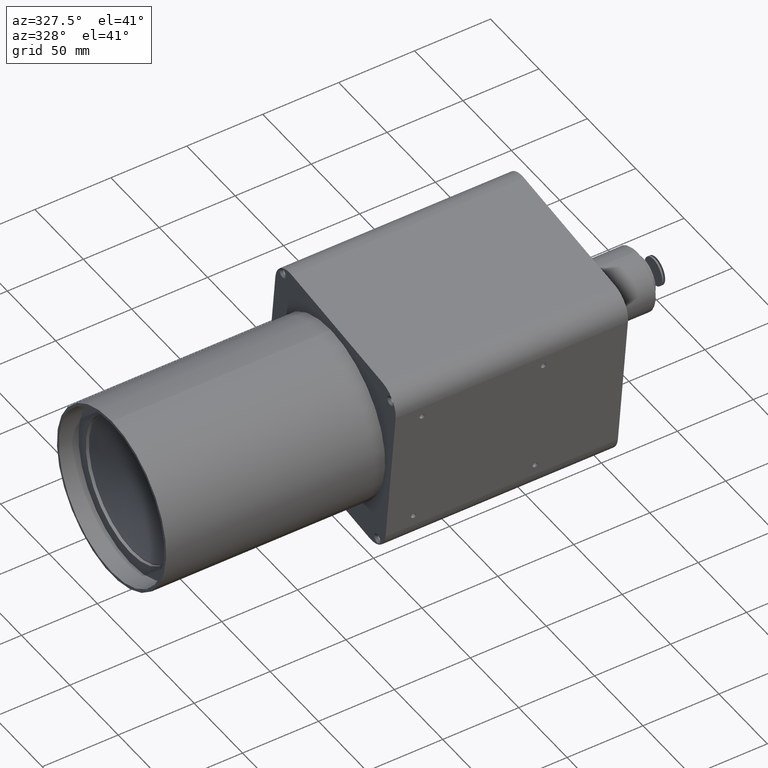
[diagram: clean part render]
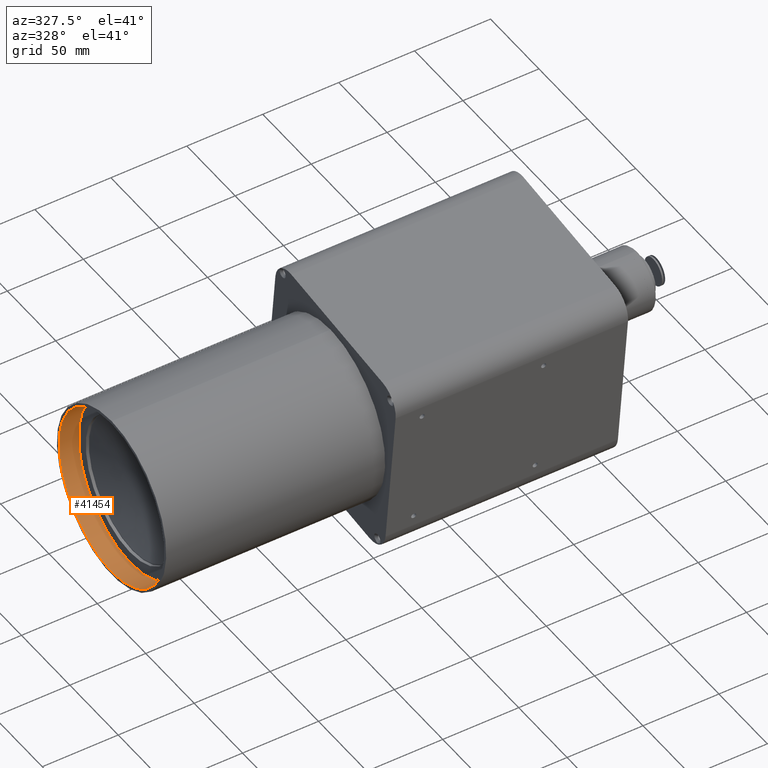
[diagram: same view with one face highlighted and labeled with its STEP entity id]
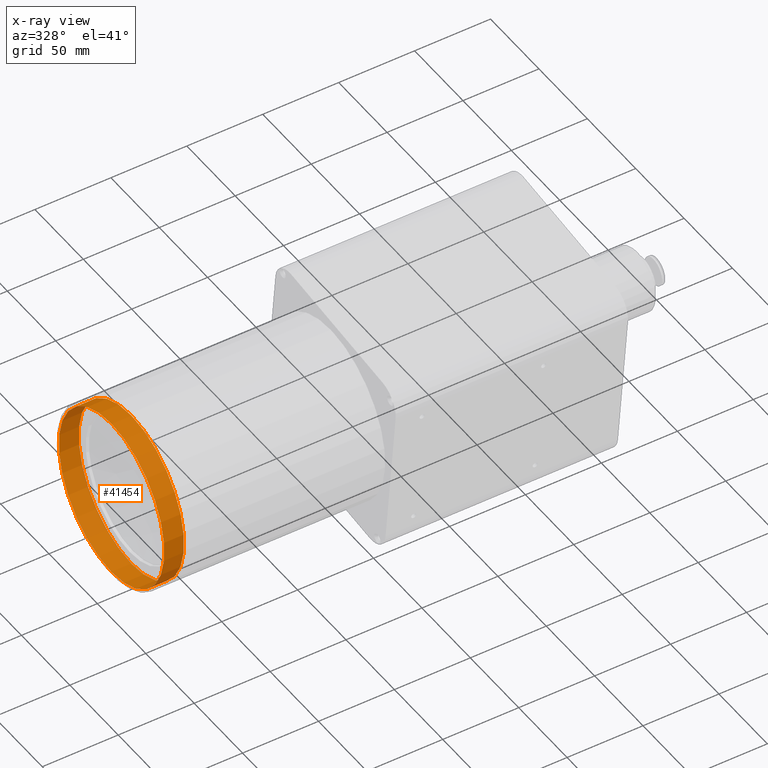
[diagram: x-ray of the same camera — body ghosted, the highlighted face saturated]
A machine part, auxiliary view. The second image highlights one B-rep face of the part: STEP entity #41454.
The next image is the same camera in x-ray: the body ghosted, the highlighted face saturated — about 0% of this face is hidden behind the body in this view.
In plain terms, the highlighted cylindrical surface (bore or boss wall) has radius 54.5 mm, axis along (-1, 0, -0).
Its self-contained STEP definition (entity closure, byte-faithful):
#1439 = DIRECTION ( 'NONE',  ( -1.000000000000000000, 0.000000000000000000, -0.000000000000000000 ) ) ;
#4480 = EDGE_LOOP ( 'NONE', ( #30869 ) ) ;
#4664 = EDGE_LOOP ( 'NONE', ( #27401 ) ) ;
#4892 = DIRECTION ( 'NONE',  ( -1.000000000000000000, 0.000000000000000000, -0.000000000000000000 ) ) ;
#5347 = VERTEX_POINT ( 'NONE', #34801 ) ;
#6982 = CARTESIAN_POINT ( 'NONE',  ( -277.6857082087649928, -0.07066737074974827060, 54.49995418459277374 ) ) ;
#11097 = EDGE_CURVE ( 'NONE', #5347, #5347, #33920, .T. ) ;
#14061 = CIRCLE ( 'NONE', #27915, 54.50000000000000000 ) ;
#14126 = AXIS2_PLACEMENT_3D ( 'NONE', #18804, #44625, #40535 ) ;
#18804 = CARTESIAN_POINT ( 'NONE',  ( -333.3962952383548100, -2.505699976877714091E-14, -2.340416494503755723E-15 ) ) ;
#23410 = CARTESIAN_POINT ( 'NONE',  ( -277.6857082087649928, -2.505699976877714091E-14, -2.340416494503755723E-15 ) ) ;
#27401 = ORIENTED_EDGE ( 'NONE', *, *, #11097, .T. ) ;
#27915 = AXIS2_PLACEMENT_3D ( 'NONE', #23410, #1439, #41280 ) ;
#29901 = FACE_OUTER_BOUND ( 'NONE', #4664, .T. ) ;
#30369 = CYLINDRICAL_SURFACE ( 'NONE', #14126, 54.50000000000000000 ) ;
#30869 = ORIENTED_EDGE ( 'NONE', *, *, #38130, .F. ) ;
#33920 = CIRCLE ( 'NONE', #46266, 54.50000000000000000 ) ;
#34801 = CARTESIAN_POINT ( 'NONE',  ( -290.6857082087649928, -0.07066737074974827060, 54.49995418459277374 ) ) ;
#37966 = CARTESIAN_POINT ( 'NONE',  ( -290.6857082087649928, -2.505699976877714091E-14, -2.340416494503755723E-15 ) ) ;
#38130 = EDGE_CURVE ( 'NONE', #43450, #43450, #14061, .T. ) ;
#40535 = DIRECTION ( 'NONE',  ( 0.000000000000000000, -0.001296649004582077101, 0.9999991593503261278 ) ) ;
#40779 = FACE_OUTER_BOUND ( 'NONE', #4480, .T. ) ;
#41280 = DIRECTION ( 'NONE',  ( 0.000000000000000000, -0.001296649004582077101, 0.9999991593503261278 ) ) ;
#41454 = ADVANCED_FACE ( 'NONE', ( #40779, #29901 ), #30369, .F. ) ;
#41837 = DIRECTION ( 'NONE',  ( 0.000000000000000000, -0.001296649004582077101, 0.9999991593503261278 ) ) ;
#43450 = VERTEX_POINT ( 'NONE', #6982 ) ;
#44625 = DIRECTION ( 'NONE',  ( -1.000000000000000000, 0.000000000000000000, -0.000000000000000000 ) ) ;
#46266 = AXIS2_PLACEMENT_3D ( 'NONE', #37966, #4892, #41837 ) ;